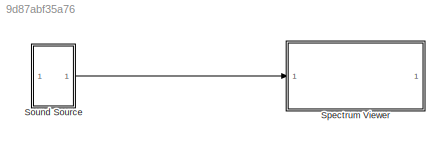
MODEL slx_9d87abf35a76
KIND model
CONFIG AbsTol = auto
CONFIG EnableMultiTasking = off
CONFIG FixedStep = auto
CONFIG MaxStep = auto
CONFIG MinStep = auto
CONFIG RelTol = 1e-3
CONFIG SampleTimeConstraint = Unconstrained
CONFIG SolverName = VariableStepAuto
CONFIG StartTime = 0.0
CONFIG StopTime = 10.0
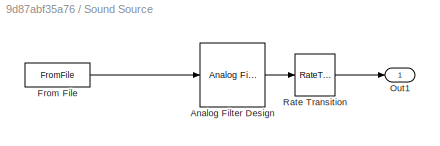
BLOCK [SubSystem] Sound Source
BLOCK [Reference] Sound Source/Analog Filter Design  REF=dspfdesign/Analog
Filter Design
  SourceBlock = dspfdesign/Analog\nFilter Design
  SourceType = Analog Filter Design
BLOCK [FromFile] Sound Source/From File
  FileName = sound.mat
  SampleTime = 0
BLOCK [Outport] Sound Source/Out1
BLOCK [RateTransition] Sound Source/Rate Transition
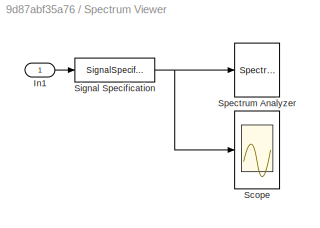
BLOCK [SubSystem] Spectrum Viewer
BLOCK [Inport] Spectrum Viewer/In1
BLOCK [Scope] Spectrum Viewer/Scope
  Floating = off
  NumInputPorts = 1
  ScopeSpecificationString = Simulink.scopes.TimeScopeBlockCfg('CurrentConfiguration', extmgr.ConfigurationSet(extmgr.Configuration('Core','General UI',true),extmgr.Configuration('Core','Source UI',true),extmgr.Configuration('Sources','WiredSimulink',true),extmgr.Configuration('Visuals','Time Domain',true,'SerializedDisplays',{struct('MinYLimReal','-1.63267','MaxYLimReal','1.88315','YLabelReal','','MinYLimMag','0.00000','MaxY...<+1476ch>
BLOCK [SignalSpecification] Spectrum Viewer/Signal Specification
  SampleTime = 1/16e4
BLOCK [SpectrumAnalyzer] Spectrum Viewer/Spectrum Analyzer
  AxesScaling = Manual
  FrequencyResolutionMethod = Window length
  FrequencySpan = Span and center frequency
  GraphicalSettings = {"GraphicalSettings":{"Style":{"BackgroundColor":[0.12941176470588237,0.12941176470588237,0.12941176470588237],"AxesColor":[0.07058823529411765,0.07058823529411765,0.07058823529411765],"LabelsColor":[0.8509803921568627,0.8509803921568627,0.8509803921568627],"PreserveColors":false,"Visible":[true],"LineStyle":["-"],"LineWidth":[1.5],"BarWidth":[0.9],"LineColor":[[1,0.9098039215686274,0.392156862745...<+1046ch>
  Method = Welch
  OverlapPercent = 6.25
  ScopeFrameLocation = window
  SelectedToolstripTab = spectrumAnalyzerToolstrip.estimationTab
  WasSavedAsWebScope = on
  WindowInvariantSamplesPerUpdate = on
  WindowPosition = [125.000000,604.000000,800.000000,500.000000,]
  YLimits = [-40 25]
LINE Sound Source/Analog Filter Design:1 -> Sound Source/Rate Transition:1
LINE Sound Source/From File:1 -> Sound Source/Analog Filter Design:1
LINE Sound Source/Rate Transition:1 -> Sound Source/Out1:1
LINE Sound Source:1 -> Spectrum Viewer:1
LINE Spectrum Viewer/In1:1 -> Spectrum Viewer/Signal Specification:1
NET Spectrum Viewer/Signal Specification:1 -> Spectrum Viewer/Scope:1, Spectrum Viewer/Spectrum Analyzer:1
note: NET lines group one-source signal fan-out (src -> all destinations, sorted); 1:1 wires keep LINE
